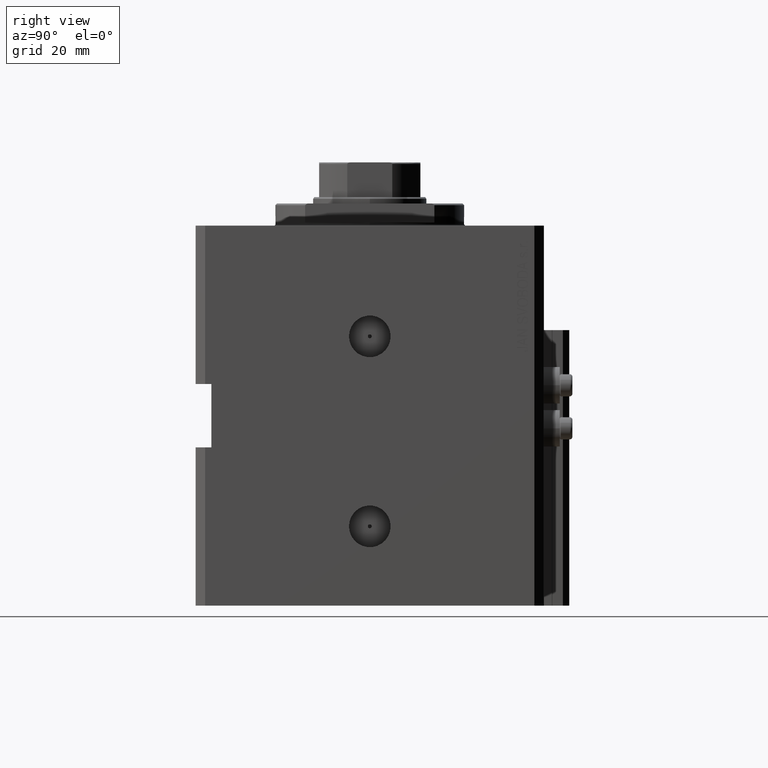
[diagram: clean part render]
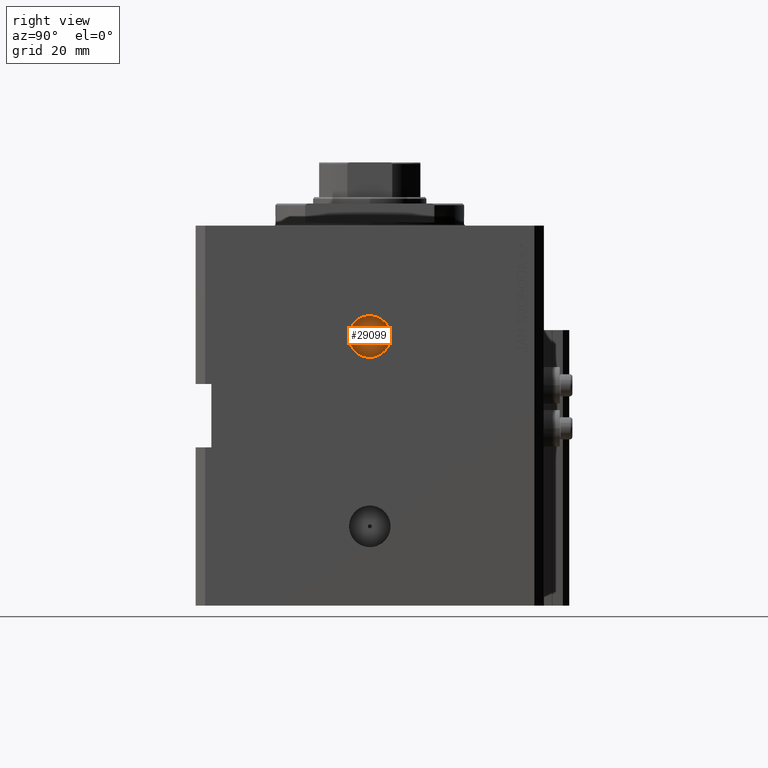
[diagram: same view with one face highlighted and labeled with its STEP entity id]
A machine part, right view. The second image highlights one B-rep face of the part: STEP entity #29099.
In plain terms, the highlighted planar face has unit normal (1, -0, 0).
Its self-contained STEP definition (entity closure, byte-faithful):
#1117 = CARTESIAN_POINT ( 'NONE',  ( 56.90000000000027569, -0.6250000000001976197, -35.00000000000000000 ) ) ;
#4371 = ORIENTED_EDGE ( 'NONE', *, *, #39816, .F. ) ;
#5341 = DIRECTION ( 'NONE',  ( 1.000000000000000000, -1.334402673828349134E-14, 0.000000000000000000 ) ) ;
#5684 = CIRCLE ( 'NONE', #35995, 0.6249999999999987788 ) ;
#6642 = DIRECTION ( 'NONE',  ( 1.000000000000000000, -1.334402673828349134E-14, 0.000000000000000000 ) ) ;
#7883 = ORIENTED_EDGE ( 'NONE', *, *, #25916, .F. ) ;
#9413 = CARTESIAN_POINT ( 'NONE',  ( 56.90000000000028280, -1.988259984004156456E-13, -35.00000000000000000 ) ) ;
#11281 = AXIS2_PLACEMENT_3D ( 'NONE', #35144, #30656, #31408 ) ;
#12234 = VERTEX_POINT ( 'NONE', #26411 ) ;
#12535 = CARTESIAN_POINT ( 'NONE',  ( 56.90000000000037517, 6.579999999999803784, -35.00000000000000000 ) ) ;
#14649 = EDGE_CURVE ( 'NONE', #31153, #23535, #34131, .T. ) ;
#14898 = DIRECTION ( 'NONE',  ( 1.334402673828349134E-14, 1.000000000000000000, 0.000000000000000000 ) ) ;
#15150 = FACE_OUTER_BOUND ( 'NONE', #35091, .T. ) ;
#15175 = VERTEX_POINT ( 'NONE', #1117 ) ;
#15383 = DIRECTION ( 'NONE',  ( 1.370906090437597808E-14, 1.000000000000000000, 0.000000000000000000 ) ) ;
#16912 = AXIS2_PLACEMENT_3D ( 'NONE', #44629, #37894, #14898 ) ;
#16933 = ORIENTED_EDGE ( 'NONE', *, *, #27064, .T. ) ;
#23014 = CARTESIAN_POINT ( 'NONE',  ( 56.90000000000028280, -1.988259984004156456E-13, -35.00000000000000000 ) ) ;
#23535 = VERTEX_POINT ( 'NONE', #12535 ) ;
#25916 = EDGE_CURVE ( 'NONE', #12234, #15175, #5684, .T. ) ;
#26348 = CARTESIAN_POINT ( 'NONE',  ( 56.90000000000019043, -6.580000000000200799, -35.00000000000000000 ) ) ;
#26411 = CARTESIAN_POINT ( 'NONE',  ( 56.90000000000028990, 0.6249999999997999378, -35.00000000000000000 ) ) ;
#26654 = PLANE ( 'NONE',  #16912 ) ;
#27064 = EDGE_CURVE ( 'NONE', #23535, #31153, #32041, .T. ) ;
#29099 = ADVANCED_FACE ( 'NONE', ( #41631, #15150 ), #26654, .T. ) ;
#29930 = CIRCLE ( 'NONE', #48269, 0.6249999999999987788 ) ;
#30656 = DIRECTION ( 'NONE',  ( 1.000000000000000000, -1.334402673828349134E-14, 0.000000000000000000 ) ) ;
#31153 = VERTEX_POINT ( 'NONE', #26348 ) ;
#31408 = DIRECTION ( 'NONE',  ( 1.370906090437597808E-14, 1.000000000000000000, 0.000000000000000000 ) ) ;
#32041 = CIRCLE ( 'NONE', #11281, 6.580000000000002736 ) ;
#33625 = ORIENTED_EDGE ( 'NONE', *, *, #14649, .T. ) ;
#34131 = CIRCLE ( 'NONE', #47662, 6.580000000000002736 ) ;
#35091 = EDGE_LOOP ( 'NONE', ( #16933, #33625 ) ) ;
#35144 = CARTESIAN_POINT ( 'NONE',  ( 56.90000000000028280, -1.988259984004156203E-13, -35.00000000000000000 ) ) ;
#35995 = AXIS2_PLACEMENT_3D ( 'NONE', #9413, #6642, #36622 ) ;
#36622 = DIRECTION ( 'NONE',  ( 1.110223024625158749E-14, 1.000000000000000000, 0.000000000000000000 ) ) ;
#37759 = DIRECTION ( 'NONE',  ( 1.110223024625158749E-14, 1.000000000000000000, 0.000000000000000000 ) ) ;
#37894 = DIRECTION ( 'NONE',  ( 1.000000000000000000, -1.334402673828349134E-14, 0.000000000000000000 ) ) ;
#39305 = CARTESIAN_POINT ( 'NONE',  ( 56.90000000000028280, -1.988259984004156203E-13, -35.00000000000000000 ) ) ;
#39816 = EDGE_CURVE ( 'NONE', #15175, #12234, #29930, .T. ) ;
#41485 = DIRECTION ( 'NONE',  ( 1.000000000000000000, -1.334402673828349134E-14, 0.000000000000000000 ) ) ;
#41631 = FACE_BOUND ( 'NONE', #47228, .T. ) ;
#44629 = CARTESIAN_POINT ( 'NONE',  ( 56.90000000000028280, -1.988259984004156203E-13, -35.00000000000000000 ) ) ;
#47228 = EDGE_LOOP ( 'NONE', ( #7883, #4371 ) ) ;
#47662 = AXIS2_PLACEMENT_3D ( 'NONE', #39305, #5341, #15383 ) ;
#48269 = AXIS2_PLACEMENT_3D ( 'NONE', #23014, #41485, #37759 ) ;